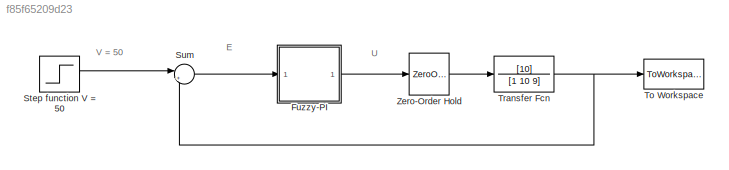
MODEL slx_f85f65209d23
KIND model
CONFIG AbsTol = auto
CONFIG EnableMultiTasking = on
CONFIG FixedStep = 0.01
CONFIG MaxStep = auto
CONFIG MinStep = auto
CONFIG RelTol = 1e-3
CONFIG SampleTimeConstraint = Unconstrained
CONFIG SolverName = ode3
CONFIG StartTime = 0.0
CONFIG StopTime = 3
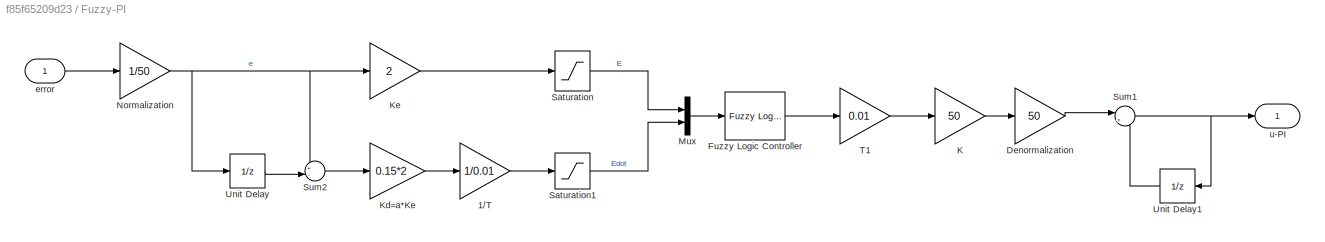
BLOCK [SubSystem] Fuzzy-PI
  Ports = [1, 1]
  RequestExecContextInheritance = off
BLOCK [Gain] Fuzzy-PI/1//T
  Gain = 1/0.01
BLOCK [Gain] Fuzzy-PI/Denormalization
  Gain = 50
BLOCK [Reference] Fuzzy-PI/Fuzzy Logic Controller  REF=fuzblock/Fuzzy Logic   (lib defined in mdl_858b3b3e7478)
Controller
  Ports = [1, 1]
  SourceBlock = fuzblock/Fuzzy Logic \nController
  SourceProductBaseCode = FL
  SourceType = Fuzzy Inference System
BLOCK [Gain] Fuzzy-PI/K
  Gain = 50
BLOCK [Gain] Fuzzy-PI/Kd=a*Ke
  Gain = 0.15*2
BLOCK [Gain] Fuzzy-PI/Ke
  Gain = 2
BLOCK [Mux] Fuzzy-PI/Mux
  DisplayOption = bar
  Inputs = 2
  Ports = [2, 1]
BLOCK [Gain] Fuzzy-PI/Normalization
  Gain = 1/50
BLOCK [Saturate] Fuzzy-PI/Saturation
  LowerLimit = -1
  UpperLimit = 1
BLOCK [Saturate] Fuzzy-PI/Saturation1
  LowerLimit = -1
  UpperLimit = 1
BLOCK [Sum] Fuzzy-PI/Sum1
  Inputs = |++
  Ports = [2, 1]
BLOCK [Sum] Fuzzy-PI/Sum2
  Inputs = +-|
  Ports = [2, 1]
BLOCK [Gain] Fuzzy-PI/T1
  Gain = 0.01
BLOCK [UnitDelay] Fuzzy-PI/Unit Delay
  HasFrameUpgradeWarning = on
  SampleTime = -1
BLOCK [UnitDelay] Fuzzy-PI/Unit Delay1
  HasFrameUpgradeWarning = on
  NameLocation = top
  SampleTime = -1
BLOCK [Inport] Fuzzy-PI/error
BLOCK [Outport] Fuzzy-PI/u-PI
BLOCK [Step] Step function V = 50
  After = 50
  SampleTime = 0
  Time = 0
  ZeroCross = off
BLOCK [Sum] Sum
  Inputs = |+-
  Ports = [2, 1]
BLOCK [ToWorkspace] To Workspace
  FixptAsFi = on
  MaxDataPoints = inf
  Ports = [1]
  SampleTime = -1
  SaveFormat = Timeseries
  VariableName = OutFinal
BLOCK [TransferFcn] Transfer Fcn
  Denominator = [1 10 9]
  Numerator = [10]
BLOCK [ZeroOrderHold] Zero-Order Hold
  SampleTime = 0.01
ANNOTATION (root): E
ANNOTATION (root): U
ANNOTATION (root): V = 50
LINE Fuzzy-PI/1//T:1 -> Fuzzy-PI/Saturation1:1
LINE Fuzzy-PI/Denormalization:1 -> Fuzzy-PI/Sum1:1
LINE Fuzzy-PI/Fuzzy Logic Controller:1 -> Fuzzy-PI/T1:1
LINE Fuzzy-PI/K:1 -> Fuzzy-PI/Denormalization:1
LINE Fuzzy-PI/Kd=a*Ke:1 -> Fuzzy-PI/1//T:1
LINE Fuzzy-PI/Ke:1 -> Fuzzy-PI/Saturation:1
LINE Fuzzy-PI/Mux:1 -> Fuzzy-PI/Fuzzy Logic Controller:1
NET Fuzzy-PI/Normalization:1 -> Fuzzy-PI/Ke:1, Fuzzy-PI/Sum2:1, Fuzzy-PI/Unit Delay:1
LINE Fuzzy-PI/Saturation1:1 -> Fuzzy-PI/Mux:2
LINE Fuzzy-PI/Saturation:1 -> Fuzzy-PI/Mux:1
NET Fuzzy-PI/Sum1:1 -> Fuzzy-PI/Unit Delay1:1, Fuzzy-PI/u-PI:1
LINE Fuzzy-PI/Sum2:1 -> Fuzzy-PI/Kd=a*Ke:1
LINE Fuzzy-PI/T1:1 -> Fuzzy-PI/K:1
LINE Fuzzy-PI/Unit Delay1:1 -> Fuzzy-PI/Sum1:2
LINE Fuzzy-PI/Unit Delay:1 -> Fuzzy-PI/Sum2:2
LINE Fuzzy-PI/error:1 -> Fuzzy-PI/Normalization:1
LINE Fuzzy-PI:1 -> Zero-Order Hold:1
LINE Step function V = 50:1 -> Sum:1
LINE Sum:1 -> Fuzzy-PI:1
NET Transfer Fcn:1 -> Sum:2, To Workspace:1
LINE Zero-Order Hold:1 -> Transfer Fcn:1
note: NET lines group one-source signal fan-out (src -> all destinations, sorted); 1:1 wires keep LINE
